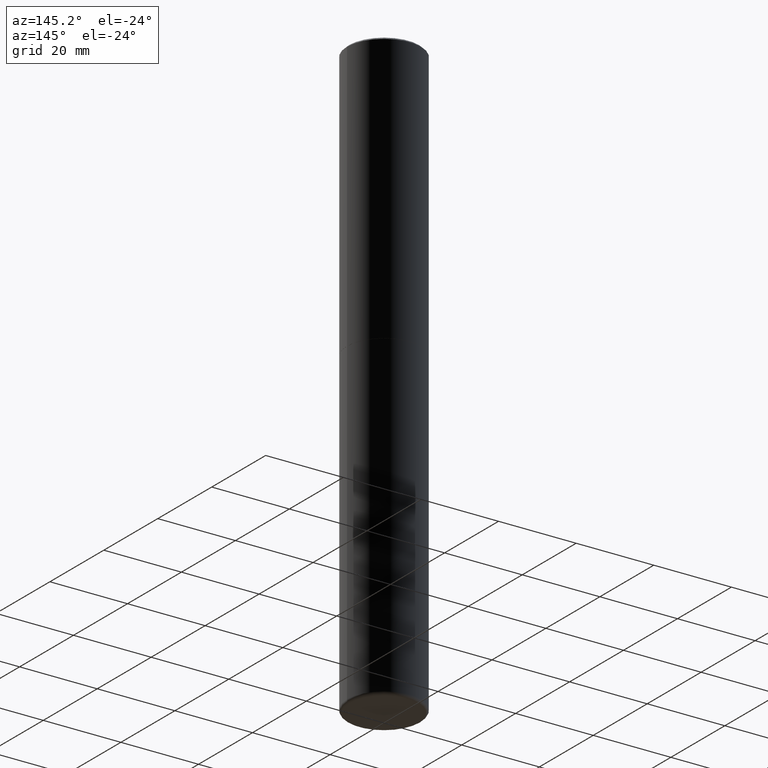
[diagram: clean part render]
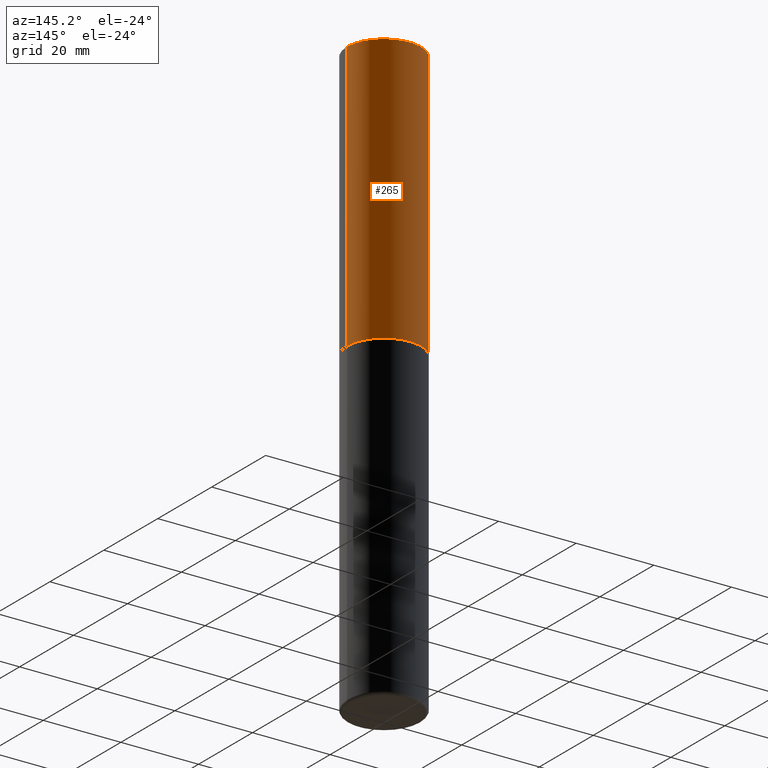
[diagram: same view with one face highlighted and labeled with its STEP entity id]
A machine part, auxiliary view. The second image highlights one B-rep face of the part: STEP entity #265.
In plain terms, the highlighted cylindrical surface (partial cylindrical patch) has radius 9.525 mm, axis along (-0, 0, 1).
Its self-contained STEP definition (entity closure, byte-faithful):
#7 = CARTESIAN_POINT ( 'NONE',  ( 0.3750000000000000555, -1.221669320461216002E-14, -2.749000000000000554 ) ) ;
#9 = ORIENTED_EDGE ( 'NONE', *, *, #211, .F. ) ;
#10 = VERTEX_POINT ( 'NONE', #377 ) ;
#23 = DIRECTION ( 'NONE',  ( -2.445468806185136597E-29, 3.491481338843145583E-15, 1.000000000000000000 ) ) ;
#25 = CARTESIAN_POINT ( 'NONE',  ( 4.890937612370292426E-31, -6.982962677686317493E-17, -0.02000000000000007674 ) ) ;
#29 = CIRCLE ( 'NONE', #338, 0.3750000000000000555 ) ;
#44 = DIRECTION ( 'NONE',  ( -2.445468806185136877E-29, 3.491481338843145188E-15, 1.000000000000000000 ) ) ;
#55 = CARTESIAN_POINT ( 'NONE',  ( 0.3749999999999996669, -2.642516375941185662E-15, -0.02000000000000007674 ) ) ;
#56 = VECTOR ( 'NONE', #71, 39.37007874015748143 ) ;
#58 = EDGE_CURVE ( 'NONE', #341, #179, #168, .T. ) ;
#60 = DIRECTION ( 'NONE',  ( -2.445468806185136597E-29, 3.491481338843145583E-15, 1.000000000000000000 ) ) ;
#71 = DIRECTION ( 'NONE',  ( -2.445468806185136877E-29, 3.491481338843145188E-15, 1.000000000000000000 ) ) ;
#72 = CARTESIAN_POINT ( 'NONE',  ( -0.3749999999999996669, 2.548781377355484352E-15, -0.02000000000000007674 ) ) ;
#102 = CARTESIAN_POINT ( 'NONE',  ( 0.3749999999999998335, -2.618611004132348439E-15, 1.828566290923475082E-29 ) ) ;
#110 = AXIS2_PLACEMENT_3D ( 'NONE', #25, #397, #297 ) ;
#123 = FACE_OUTER_BOUND ( 'NONE', #161, .T. ) ;
#131 = CIRCLE ( 'NONE', #110, 0.3749999999999996669 ) ;
#147 = CARTESIAN_POINT ( 'NONE',  ( -0.3749999999999998335, 2.664535259100374514E-15, -1.844600658845588757E-29 ) ) ;
#156 = ORIENTED_EDGE ( 'NONE', *, *, #240, .T. ) ;
#161 = EDGE_LOOP ( 'NONE', ( #156, #232, #9, #403 ) ) ;
#168 = LINE ( 'NONE', #102, #56 ) ;
#179 = VERTEX_POINT ( 'NONE', #55 ) ;
#211 = EDGE_CURVE ( 'NONE', #179, #310, #131, .T. ) ;
#228 = CARTESIAN_POINT ( 'NONE',  ( 0.000000000000000000, 0.000000000000000000, 0.000000000000000000 ) ) ;
#232 = ORIENTED_EDGE ( 'NONE', *, *, #388, .T. ) ;
#240 = EDGE_CURVE ( 'NONE', #341, #10, #29, .T. ) ;
#252 = AXIS2_PLACEMENT_3D ( 'NONE', #228, #60, #302 ) ;
#256 = CYLINDRICAL_SURFACE ( 'NONE', #252, 0.3749999999999998335 ) ;
#264 = DIRECTION ( 'NONE',  ( 1.000000000000000000, -6.982962677686266711E-15, 0.000000000000000000 ) ) ;
#265 = ADVANCED_FACE ( 'NONE', ( #123 ), #256, .T. ) ;
#293 = LINE ( 'NONE', #147, #428 ) ;
#297 = DIRECTION ( 'NONE',  ( 1.000000000000000000, -6.982962677686266711E-15, 0.000000000000000000 ) ) ;
#302 = DIRECTION ( 'NONE',  ( 1.000000000000000000, -6.982962677686265922E-15, 4.876176775795935793E-29 ) ) ;
#310 = VERTEX_POINT ( 'NONE', #72 ) ;
#338 = AXIS2_PLACEMENT_3D ( 'NONE', #421, #23, #264 ) ;
#341 = VERTEX_POINT ( 'NONE', #7 ) ;
#377 = CARTESIAN_POINT ( 'NONE',  ( -0.3749999999999999445, -2.169420654527958984E-15, -2.749000000000000554 ) ) ;
#388 = EDGE_CURVE ( 'NONE', #10, #310, #293, .T. ) ;
#397 = DIRECTION ( 'NONE',  ( -2.445468806185136597E-29, 3.491481338843145583E-15, 1.000000000000000000 ) ) ;
#403 = ORIENTED_EDGE ( 'NONE', *, *, #58, .F. ) ;
#421 = CARTESIAN_POINT ( 'NONE',  ( 6.722593748202942280E-29, -9.598082200479810007E-15, -2.749000000000000554 ) ) ;
#428 = VECTOR ( 'NONE', #44, 39.37007874015748143 ) ;